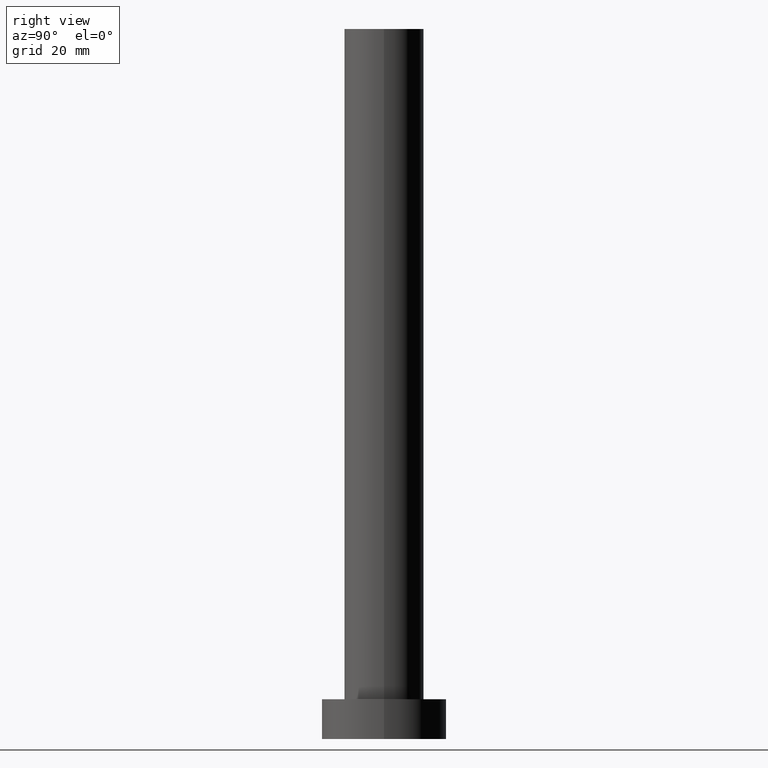
[diagram: clean part render]
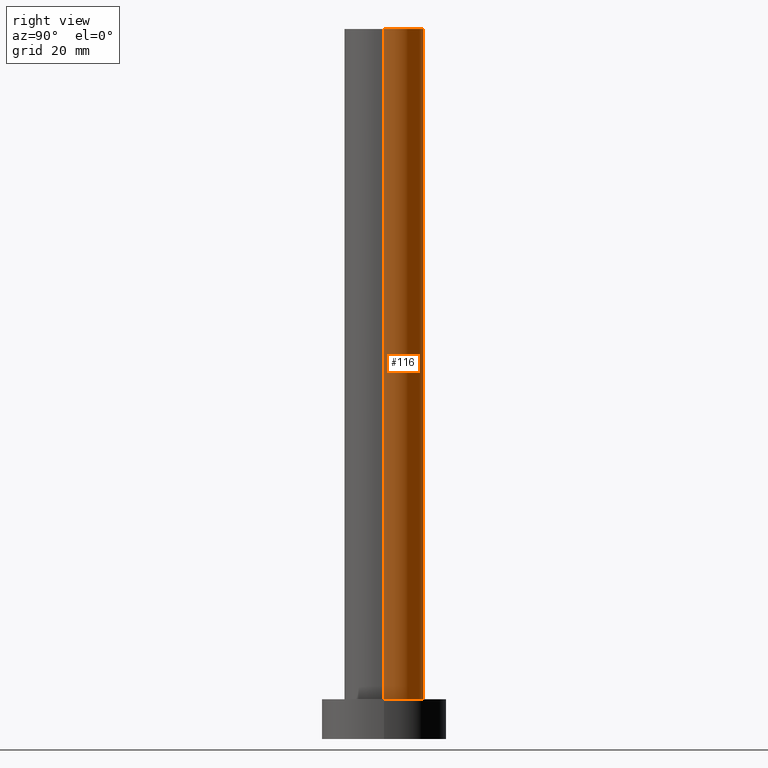
[diagram: same view with one face highlighted and labeled with its STEP entity id]
A machine part, right view. The second image highlights one B-rep face of the part: STEP entity #116.
In plain terms, the highlighted cylindrical surface (partial cylindrical patch) has radius 7 mm, axis along (-0, -0, -1).
Its self-contained STEP definition (entity closure, byte-faithful):
#4 = CARTESIAN_POINT ( 'NONE',  ( 0.000000000000000000, 0.000000000000000000, 125.0000000000000000 ) ) ;
#10 = AXIS2_PLACEMENT_3D ( 'NONE', #200, #224, #27 ) ;
#11 = CARTESIAN_POINT ( 'NONE',  ( 0.000000000000000000, 0.000000000000000000, 125.0000000000000000 ) ) ;
#12 = DIRECTION ( 'NONE',  ( -0.000000000000000000, -0.000000000000000000, -1.000000000000000000 ) ) ;
#13 = CARTESIAN_POINT ( 'NONE',  ( -7.000000000000000888, 0.000000000000000000, 7.000000000000000000 ) ) ;
#16 = LINE ( 'NONE', #70, #198 ) ;
#27 = DIRECTION ( 'NONE',  ( 1.000000000000000000, 0.000000000000000000, 0.000000000000000000 ) ) ;
#41 = CARTESIAN_POINT ( 'NONE',  ( 7.000000000000000888, 8.572527594031474176E-16, 125.0000000000000000 ) ) ;
#44 = CARTESIAN_POINT ( 'NONE',  ( -7.000000000000000888, 0.000000000000000000, 125.0000000000000000 ) ) ;
#47 = EDGE_CURVE ( 'NONE', #212, #120, #16, .T. ) ;
#68 = AXIS2_PLACEMENT_3D ( 'NONE', #4, #161, #241 ) ;
#70 = CARTESIAN_POINT ( 'NONE',  ( -7.000000000000000888, 0.000000000000000000, 125.0000000000000000 ) ) ;
#79 = ORIENTED_EDGE ( 'NONE', *, *, #205, .T. ) ;
#83 = AXIS2_PLACEMENT_3D ( 'NONE', #11, #146, #229 ) ;
#84 = VERTEX_POINT ( 'NONE', #168 ) ;
#98 = EDGE_LOOP ( 'NONE', ( #118, #139, #79, #99 ) ) ;
#99 = ORIENTED_EDGE ( 'NONE', *, *, #47, .F. ) ;
#105 = VERTEX_POINT ( 'NONE', #147 ) ;
#116 = ADVANCED_FACE ( 'NONE', ( #172 ), #209, .T. ) ;
#117 = CIRCLE ( 'NONE', #10, 7.000000000000000888 ) ;
#118 = ORIENTED_EDGE ( 'NONE', *, *, #253, .F. ) ;
#120 = VERTEX_POINT ( 'NONE', #13 ) ;
#139 = ORIENTED_EDGE ( 'NONE', *, *, #202, .T. ) ;
#146 = DIRECTION ( 'NONE',  ( -0.000000000000000000, -0.000000000000000000, -1.000000000000000000 ) ) ;
#147 = CARTESIAN_POINT ( 'NONE',  ( 7.000000000000000888, 8.572527594031474176E-16, 7.000000000000000000 ) ) ;
#151 = CIRCLE ( 'NONE', #68, 7.000000000000000888 ) ;
#160 = DIRECTION ( 'NONE',  ( -0.000000000000000000, -0.000000000000000000, -1.000000000000000000 ) ) ;
#161 = DIRECTION ( 'NONE',  ( 0.000000000000000000, 0.000000000000000000, 1.000000000000000000 ) ) ;
#163 = VECTOR ( 'NONE', #160, 1000.000000000000000 ) ;
#168 = CARTESIAN_POINT ( 'NONE',  ( 7.000000000000000888, 8.572527594031474176E-16, 125.0000000000000000 ) ) ;
#172 = FACE_OUTER_BOUND ( 'NONE', #98, .T. ) ;
#198 = VECTOR ( 'NONE', #12, 1000.000000000000000 ) ;
#200 = CARTESIAN_POINT ( 'NONE',  ( 0.000000000000000000, 0.000000000000000000, 7.000000000000000000 ) ) ;
#202 = EDGE_CURVE ( 'NONE', #84, #105, #237, .T. ) ;
#205 = EDGE_CURVE ( 'NONE', #105, #120, #117, .T. ) ;
#209 = CYLINDRICAL_SURFACE ( 'NONE', #83, 7.000000000000000888 ) ;
#212 = VERTEX_POINT ( 'NONE', #44 ) ;
#224 = DIRECTION ( 'NONE',  ( 0.000000000000000000, 0.000000000000000000, 1.000000000000000000 ) ) ;
#229 = DIRECTION ( 'NONE',  ( -1.000000000000000000, 0.000000000000000000, 0.000000000000000000 ) ) ;
#237 = LINE ( 'NONE', #41, #163 ) ;
#241 = DIRECTION ( 'NONE',  ( 1.000000000000000000, 0.000000000000000000, 0.000000000000000000 ) ) ;
#253 = EDGE_CURVE ( 'NONE', #84, #212, #151, .T. ) ;